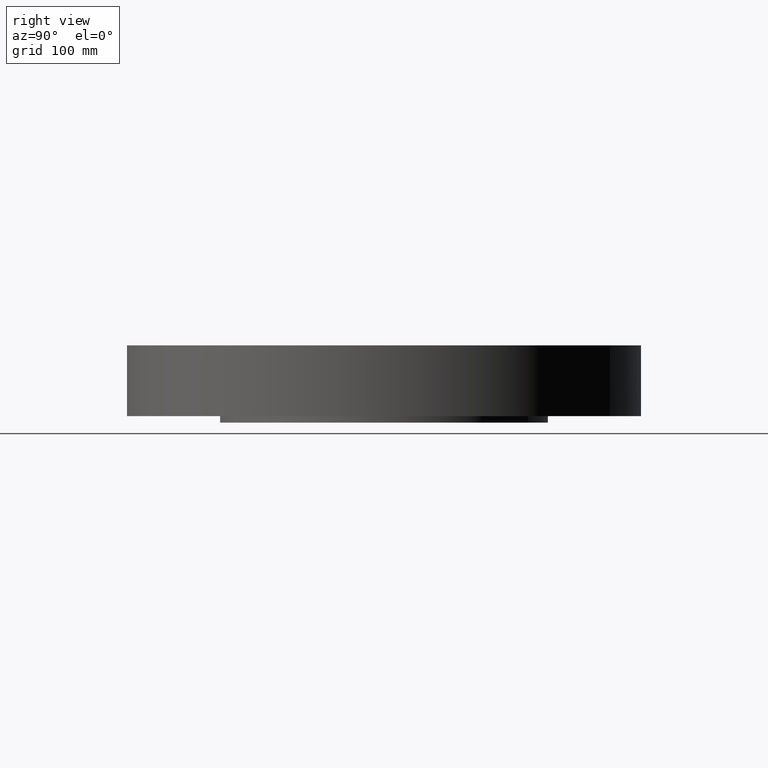
[diagram: clean part render]
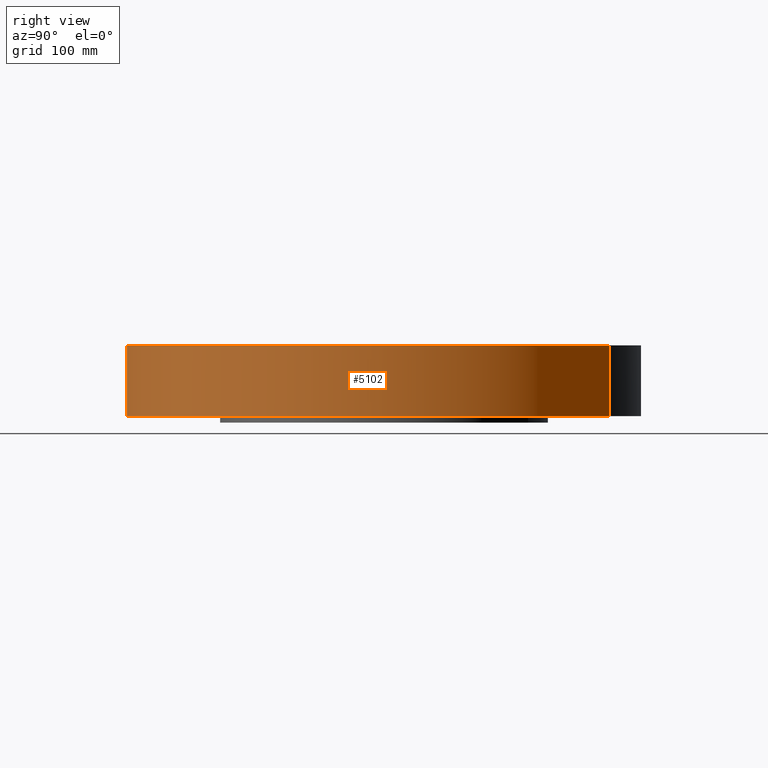
[diagram: same view with one face highlighted and labeled with its STEP entity id]
A machine part, right view. The second image highlights one B-rep face of the part: STEP entity #5102.
In plain terms, the highlighted cylindrical surface (partial cylindrical patch) has radius 254 mm, axis along (0, 0, -1).
Its self-contained STEP definition (entity closure, byte-faithful):
#4307=AXIS2_PLACEMENT_3D('Circle Axis2P3D',#4305,#4306,$) ;
#5063=AXIS2_PLACEMENT_3D('Cylinder Axis2P3D',#5060,#5061,#5062) ;
#5093=AXIS2_PLACEMENT_3D('Circle Axis2P3D',#5091,#5092,$) ;
#4300=CARTESIAN_POINT('Vertex',(-4.79425538606,-8.77582561894,-4.25206676518E-014)) ;
#4302=CARTESIAN_POINT('Vertex',(4.79425538606,8.77582561894,-4.25206676518E-014)) ;
#4305=CARTESIAN_POINT('Axis2P3D Location',(0.,0.,0.)) ;
#5060=CARTESIAN_POINT('Axis2P3D Location',(0.,0.,1.25000000001)) ;
#5065=CARTESIAN_POINT('Line Origine',(-4.79425538606,-8.77582561894,1.37500000001)) ;
#5069=CARTESIAN_POINT('Vertex',(-4.79425538606,-8.77582561894,2.75000000001)) ;
#5076=CARTESIAN_POINT('Vertex',(4.79425538606,8.77582561894,2.75000000001)) ;
#5079=CARTESIAN_POINT('Line Origine',(4.79425538606,8.77582561894,1.37500000001)) ;
#5091=CARTESIAN_POINT('Axis2P3D Location',(0.,0.,2.75000000001)) ;
#4306=DIRECTION('Axis2P3D Direction',(0.,0.,-0.0393700787402)) ;
#5061=DIRECTION('Axis2P3D Direction',(0.,0.,-0.0393700787402)) ;
#5062=DIRECTION('Axis2P3D XDirection',(0.0188750212049,0.0345504945626,0.)) ;
#5066=DIRECTION('Vector Direction',(0.,0.,-0.0393700787402)) ;
#5080=DIRECTION('Vector Direction',(0.,0.,-0.0393700787402)) ;
#5092=DIRECTION('Axis2P3D Direction',(0.,0.,-0.0393700787402)) ;
#5067=VECTOR('Line Direction',#5066,0.0393700787402) ;
#5081=VECTOR('Line Direction',#5080,0.0393700787402) ;
#5097=ORIENTED_EDGE('',*,*,#4309,.F.) ;
#5098=ORIENTED_EDGE('',*,*,#5083,.T.) ;
#5099=ORIENTED_EDGE('',*,*,#5095,.T.) ;
#5100=ORIENTED_EDGE('',*,*,#5071,.F.) ;
#5102=ADVANCED_FACE('PartBody',(#5101),#5064,.T.) ;
#4308=CIRCLE('generated circle',#4307,10.) ;
#5094=CIRCLE('generated circle',#5093,10.) ;
#5064=CYLINDRICAL_SURFACE('generated cylinder',#5063,10.) ;
#4309=EDGE_CURVE('',#4303,#4301,#4308,.T.) ;
#5071=EDGE_CURVE('',#4301,#5070,#5068,.F.) ;
#5083=EDGE_CURVE('',#4303,#5077,#5082,.F.) ;
#5095=EDGE_CURVE('',#5077,#5070,#5094,.T.) ;
#5096=EDGE_LOOP('',(#5097,#5098,#5099,#5100)) ;
#5101=FACE_OUTER_BOUND('',#5096,.T.) ;
#5068=LINE('Line',#5065,#5067) ;
#5082=LINE('Line',#5079,#5081) ;
#4301=VERTEX_POINT('',#4300) ;
#4303=VERTEX_POINT('',#4302) ;
#5070=VERTEX_POINT('',#5069) ;
#5077=VERTEX_POINT('',#5076) ;